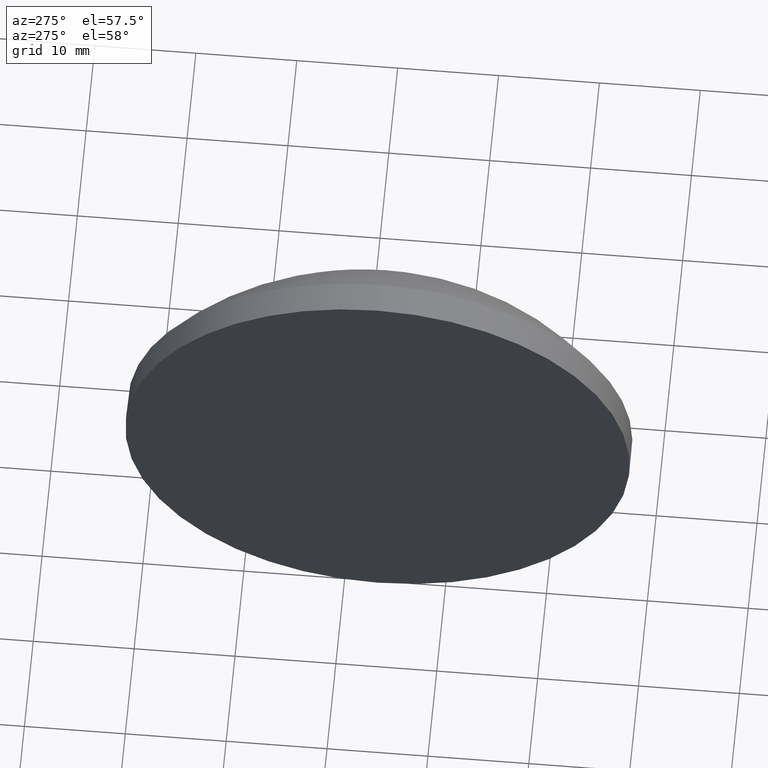
[diagram: clean part render]
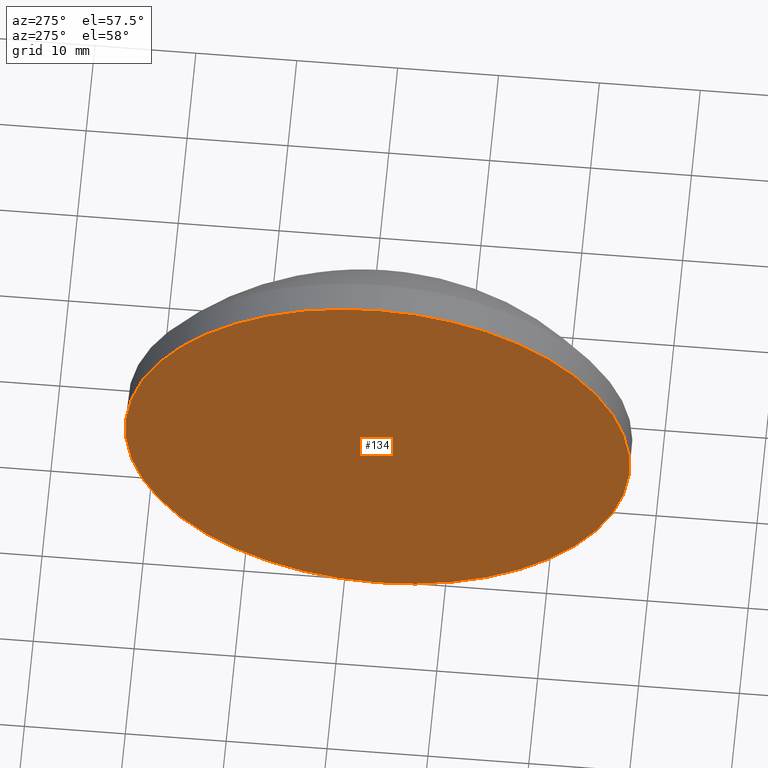
[diagram: same view with one face highlighted and labeled with its STEP entity id]
A machine part, auxiliary view. The second image highlights one B-rep face of the part: STEP entity #134.
In plain terms, the highlighted planar face has unit normal (1, 0, 0).
Its self-contained STEP definition (entity closure, byte-faithful):
#2 = CARTESIAN_POINT ( 'NONE',  ( 439.1104221299683600, 106.6707544815266100, 0.0000000000000000000 ) ) ;
#11 = ORIENTED_EDGE ( 'NONE', *, *, #138, .T. ) ;
#13 = AXIS2_PLACEMENT_3D ( 'NONE', #2, #160, #186 ) ;
#34 = PLANE ( 'NONE',  #157 ) ;
#44 = EDGE_CURVE ( 'NONE', #96, #67, #112, .T. ) ;
#63 = DIRECTION ( 'NONE',  ( -1.000000000000000000, -0.0000000000000000000, -0.0000000000000000000 ) ) ;
#67 = VERTEX_POINT ( 'NONE', #162 ) ;
#72 = DIRECTION ( 'NONE',  ( 0.0000000000000000000, 0.0000000000000000000, -1.000000000000000000 ) ) ;
#76 = EDGE_LOOP ( 'NONE', ( #11, #113 ) ) ;
#83 = FACE_OUTER_BOUND ( 'NONE', #76, .T. ) ;
#87 = CARTESIAN_POINT ( 'NONE',  ( 439.1104221299683600, 106.6707544815266100, 0.0000000000000000000 ) ) ;
#96 = VERTEX_POINT ( 'NONE', #117 ) ;
#102 = CARTESIAN_POINT ( 'NONE',  ( 439.1104221299683600, 106.6707544815266100, 0.0000000000000000000 ) ) ;
#109 = CIRCLE ( 'NONE', #140, 25.00000000000000700 ) ;
#112 = CIRCLE ( 'NONE', #13, 25.00000000000000700 ) ;
#113 = ORIENTED_EDGE ( 'NONE', *, *, #44, .T. ) ;
#117 = CARTESIAN_POINT ( 'NONE',  ( 439.1104221299683600, 106.6707544815266100, -25.00000000000000700 ) ) ;
#134 = ADVANCED_FACE ( 'NONE', ( #83 ), #34, .F. ) ;
#138 = EDGE_CURVE ( 'NONE', #67, #96, #109, .T. ) ;
#140 = AXIS2_PLACEMENT_3D ( 'NONE', #87, #63, #165 ) ;
#157 = AXIS2_PLACEMENT_3D ( 'NONE', #102, #166, #72 ) ;
#160 = DIRECTION ( 'NONE',  ( -1.000000000000000000, -0.0000000000000000000, -0.0000000000000000000 ) ) ;
#162 = CARTESIAN_POINT ( 'NONE',  ( 439.1104221299683600, 106.6707544815266100, 25.00000000000000700 ) ) ;
#165 = DIRECTION ( 'NONE',  ( 0.0000000000000000000, 0.0000000000000000000, 1.000000000000000000 ) ) ;
#166 = DIRECTION ( 'NONE',  ( 1.000000000000000000, 0.0000000000000000000, 0.0000000000000000000 ) ) ;
#186 = DIRECTION ( 'NONE',  ( 0.0000000000000000000, 0.0000000000000000000, 1.000000000000000000 ) ) ;